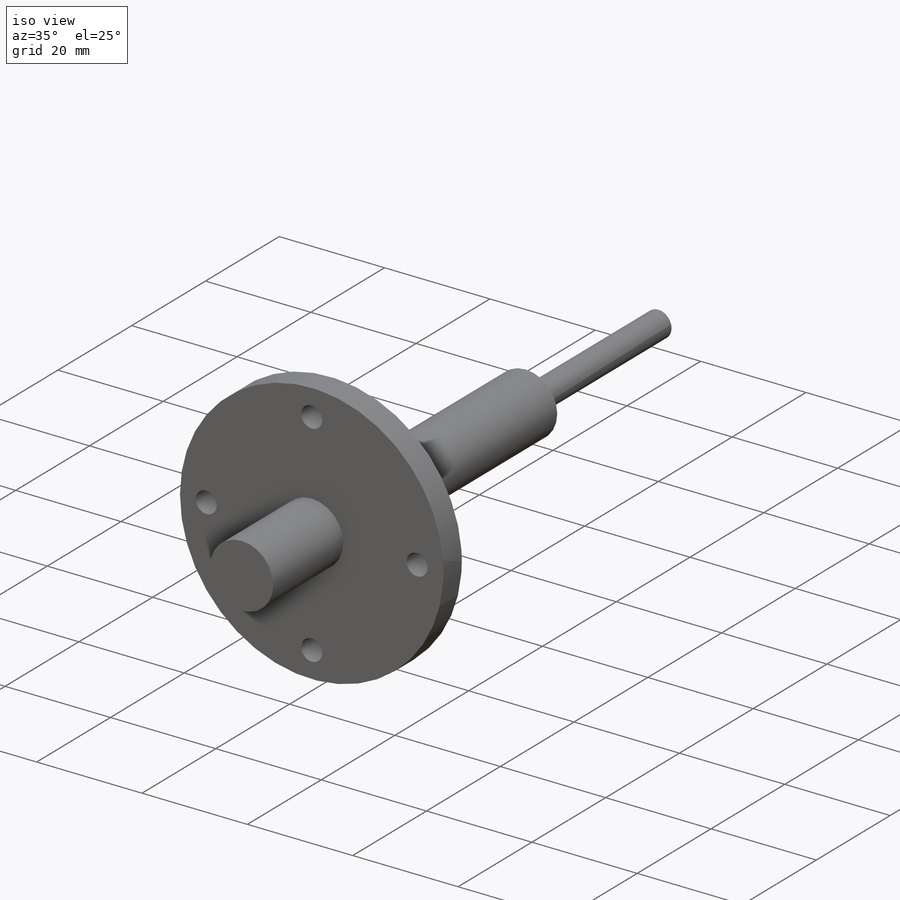
[diagram: iso view]
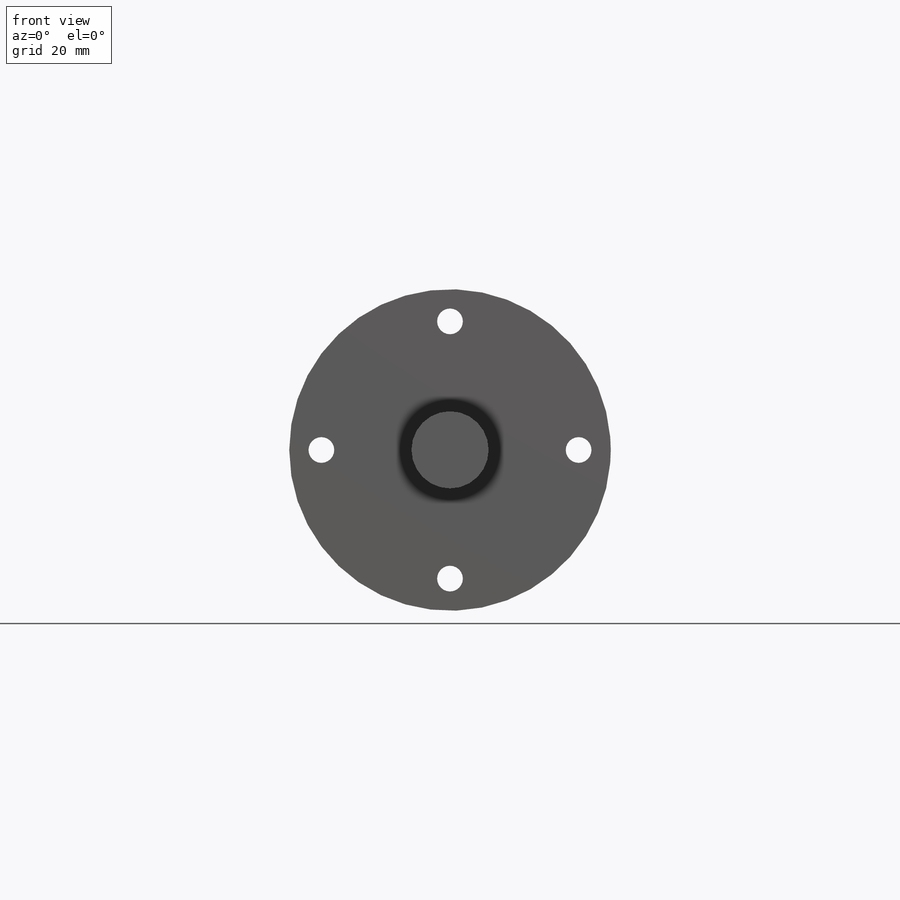
[diagram: front view]
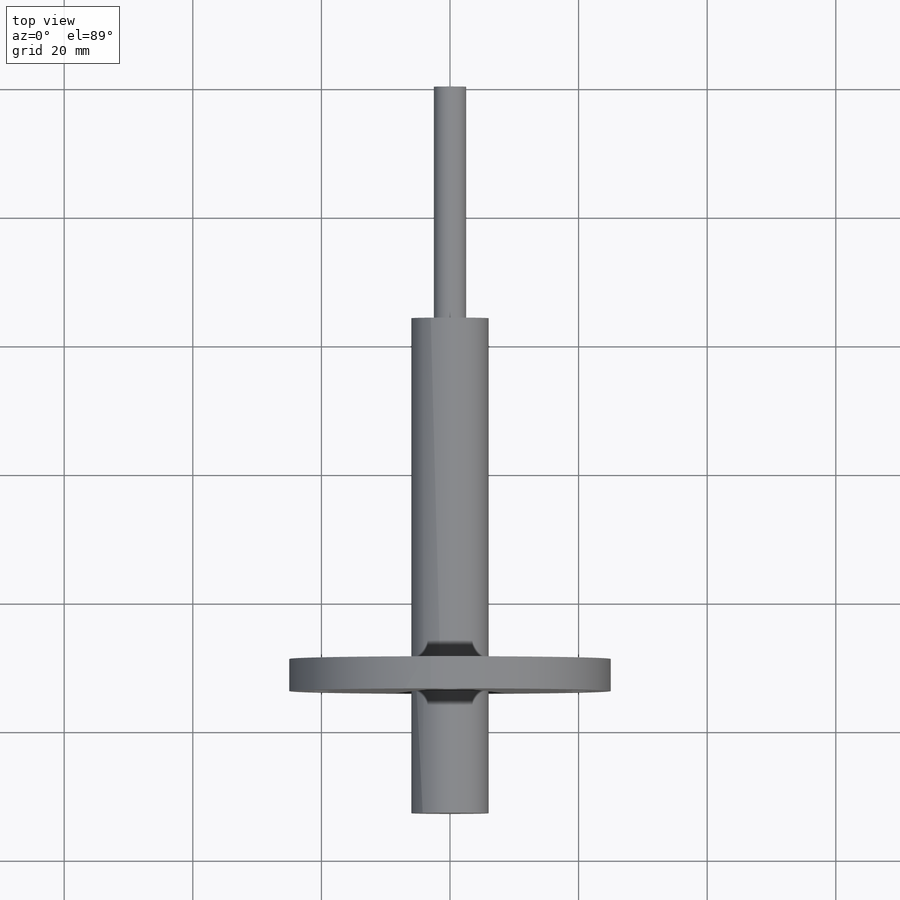
[diagram: top view]
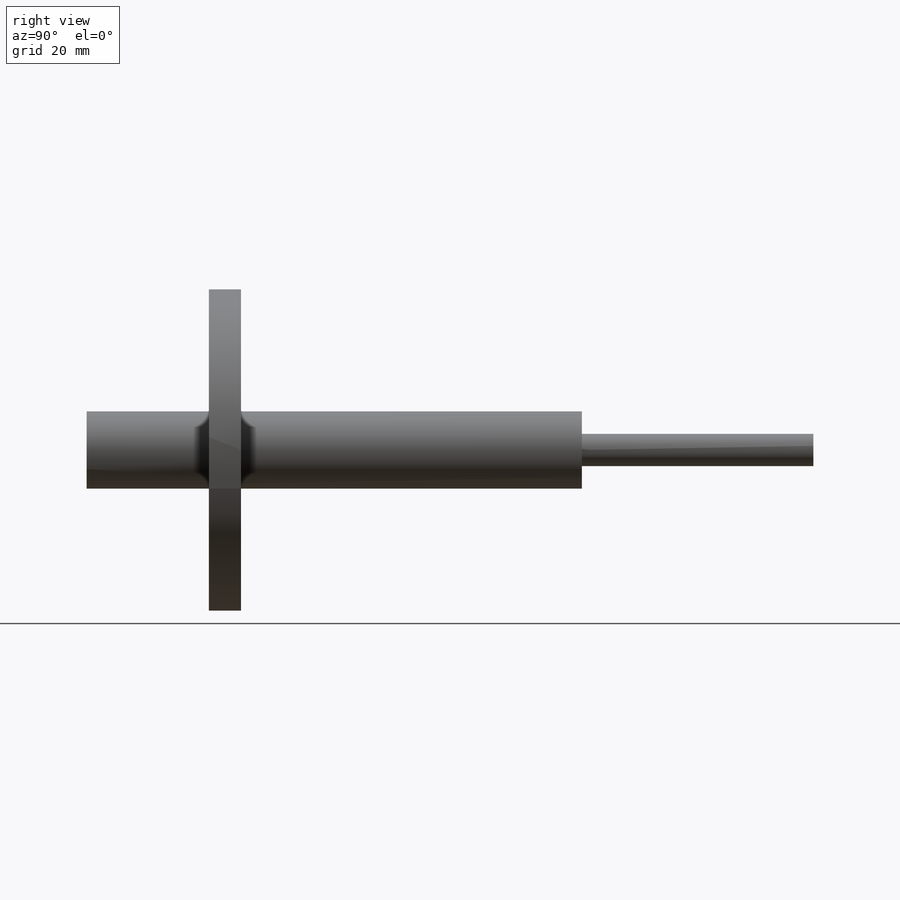
[diagram: right view]
SOLIDWORKS PART (.sldprt)
format: sldprt  version: not decoded by parser v0  size: 178,176 bytes
history: native  units: mm
features: sketch x5, cut_extrude x4, plane x3, material x1, extrude x1, pattern_circular x1 (+10 scaffold rows collapsed)
feature tree (25):
  scaffold x10  (default folders/planes/origin — collapsed)
  material  "Matériau <non spécifié>"
  plane  "Plan de face"
  plane  "Plan de dessus"
  plane  "Plan de droite"
  sketch  "Esquisse1"  dims[D1=50.0mm]
  extrude  "Boss.-Extru.1"  Depth=113mm
  sketch  "Esquisse2"  dims[D1=12.0mm]
  cut_extrude  "Enlèv. mat.-Extru.1"  Depth=19mm
  sketch  "Esquisse3"  dims[D1=12.0mm]
  cut_extrude  "Enlèv. mat.-Extru.3"  Depth=89mm
  sketch  "Esquisse4"  dims[D1=5.0mm]
  cut_extrude  "Enlèv. mat.-Extru.4"  Depth=36mm
  sketch  "Esquisse8"  dims[D1=4.0mm D2=20.0mm]
  cut_extrude  "Enlèv. mat.-Extru.5"  [1 undecoded]
  pattern_circular  "Répétition circulaire2"  Count=4 Angle=360deg
decode coverage: 10 of 11 modeling features carry decoded parameters
note: 1 parameter value undecoded
note: suppression state not decoded; provenance and decode notes live in map.json
